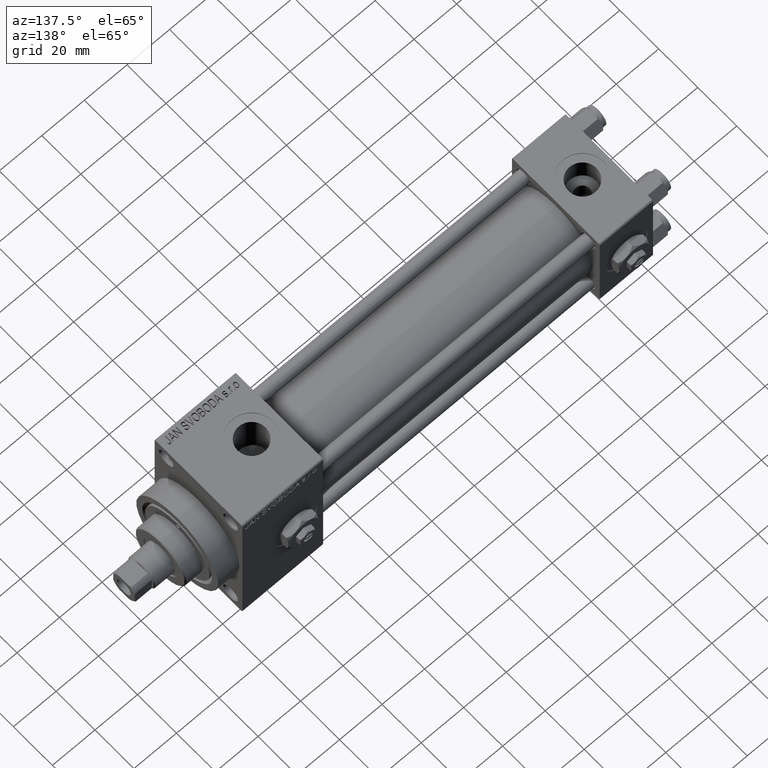
[diagram: clean part render]
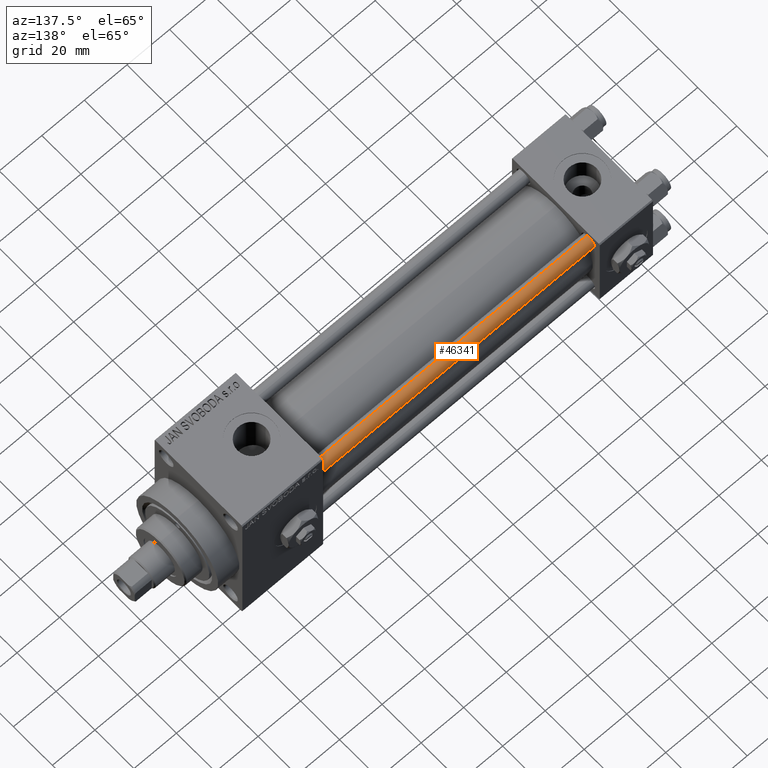
[diagram: same view with one face highlighted and labeled with its STEP entity id]
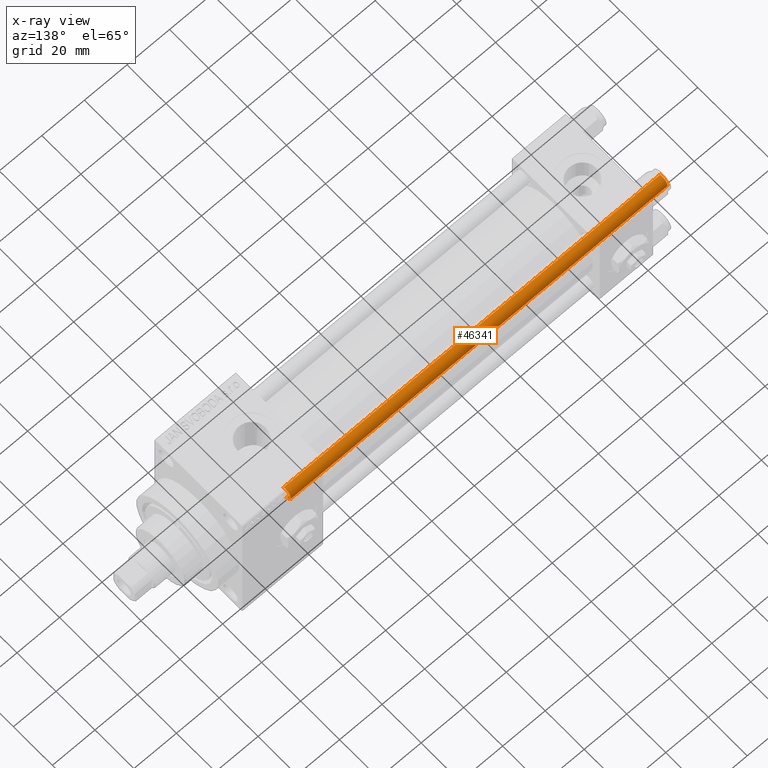
[diagram: x-ray of the same camera — body ghosted, the highlighted face saturated]
A machine part, auxiliary view. The second image highlights one B-rep face of the part: STEP entity #46341.
The next image is the same camera in x-ray: the body ghosted, the highlighted face saturated — about 0% of this face is hidden behind the body in this view.
In plain terms, the highlighted cylindrical surface (edge-blend (fillet) strip) has radius 3 mm, axis along (-1, -0, 0).
Its self-contained STEP definition (entity closure, byte-faithful):
#1951 = ORIENTED_EDGE ( 'NONE', *, *, #9349, .T. ) ;
#4616 = DIRECTION ( 'NONE',  ( -0.000000000000000000, -0.000000000000000000, -1.000000000000000000 ) ) ;
#6950 = DIRECTION ( 'NONE',  ( 0.000000000000000000, 0.000000000000000000, -1.000000000000000000 ) ) ;
#7226 = LINE ( 'NONE', #26932, #22480 ) ;
#7478 = CARTESIAN_POINT ( 'NONE',  ( 3.000000000000000444, 3.673940397442060361E-16, 0.5000000000000281997 ) ) ;
#7611 = CARTESIAN_POINT ( 'NONE',  ( -3.000000000000000444, 0.000000000000000000, 178.0000000000000000 ) ) ;
#8885 = CARTESIAN_POINT ( 'NONE',  ( 0.000000000000000000, 0.000000000000000000, 0.5000000000000281997 ) ) ;
#9349 = EDGE_CURVE ( 'NONE', #27768, #19315, #11980, .T. ) ;
#11980 = CIRCLE ( 'NONE', #16762, 3.000000000000000444 ) ;
#12228 = AXIS2_PLACEMENT_3D ( 'NONE', #8885, #23867, #23635 ) ;
#13677 = CARTESIAN_POINT ( 'NONE',  ( 0.000000000000000000, 0.000000000000000000, 177.5000000000000000 ) ) ;
#13808 = CIRCLE ( 'NONE', #12228, 3.000000000000000444 ) ;
#14990 = FACE_OUTER_BOUND ( 'NONE', #29352, .T. ) ;
#15975 = DIRECTION ( 'NONE',  ( -1.000000000000000000, 0.000000000000000000, 0.000000000000000000 ) ) ;
#16595 = EDGE_CURVE ( 'NONE', #19315, #48321, #7226, .T. ) ;
#16762 = AXIS2_PLACEMENT_3D ( 'NONE', #13677, #6950, #28914 ) ;
#18678 = EDGE_CURVE ( 'NONE', #27768, #26991, #19328, .T. ) ;
#19190 = DIRECTION ( 'NONE',  ( -0.000000000000000000, -0.000000000000000000, -1.000000000000000000 ) ) ;
#19315 = VERTEX_POINT ( 'NONE', #31678 ) ;
#19328 = LINE ( 'NONE', #7611, #20149 ) ;
#20149 = VECTOR ( 'NONE', #4616, 1000.000000000000000 ) ;
#20967 = ORIENTED_EDGE ( 'NONE', *, *, #16595, .T. ) ;
#22480 = VECTOR ( 'NONE', #19190, 1000.000000000000000 ) ;
#23635 = DIRECTION ( 'NONE',  ( 1.000000000000000000, 0.000000000000000000, 0.000000000000000000 ) ) ;
#23867 = DIRECTION ( 'NONE',  ( -0.000000000000000000, -0.000000000000000000, 1.000000000000000000 ) ) ;
#25561 = ORIENTED_EDGE ( 'NONE', *, *, #44661, .T. ) ;
#26730 = CYLINDRICAL_SURFACE ( 'NONE', #31445, 3.000000000000000444 ) ;
#26932 = CARTESIAN_POINT ( 'NONE',  ( 3.000000000000000444, 3.673940397442060361E-16, 178.0000000000000000 ) ) ;
#26991 = VERTEX_POINT ( 'NONE', #28929 ) ;
#27108 = ORIENTED_EDGE ( 'NONE', *, *, #18678, .F. ) ;
#27224 = DIRECTION ( 'NONE',  ( -0.000000000000000000, -0.000000000000000000, -1.000000000000000000 ) ) ;
#27768 = VERTEX_POINT ( 'NONE', #36418 ) ;
#28914 = DIRECTION ( 'NONE',  ( 1.000000000000000000, 0.000000000000000000, 0.000000000000000000 ) ) ;
#28929 = CARTESIAN_POINT ( 'NONE',  ( -3.000000000000000444, 0.000000000000000000, 0.5000000000000281997 ) ) ;
#29352 = EDGE_LOOP ( 'NONE', ( #1951, #20967, #25561, #27108 ) ) ;
#31445 = AXIS2_PLACEMENT_3D ( 'NONE', #41960, #27224, #15975 ) ;
#31678 = CARTESIAN_POINT ( 'NONE',  ( 3.000000000000000444, 3.673940397442060361E-16, 177.5000000000000000 ) ) ;
#36418 = CARTESIAN_POINT ( 'NONE',  ( -3.000000000000000444, 0.000000000000000000, 177.5000000000000000 ) ) ;
#41960 = CARTESIAN_POINT ( 'NONE',  ( 0.000000000000000000, 0.000000000000000000, 178.0000000000000000 ) ) ;
#44661 = EDGE_CURVE ( 'NONE', #48321, #26991, #13808, .T. ) ;
#46341 = ADVANCED_FACE ( 'NONE', ( #14990 ), #26730, .T. ) ;
#48321 = VERTEX_POINT ( 'NONE', #7478 ) ;